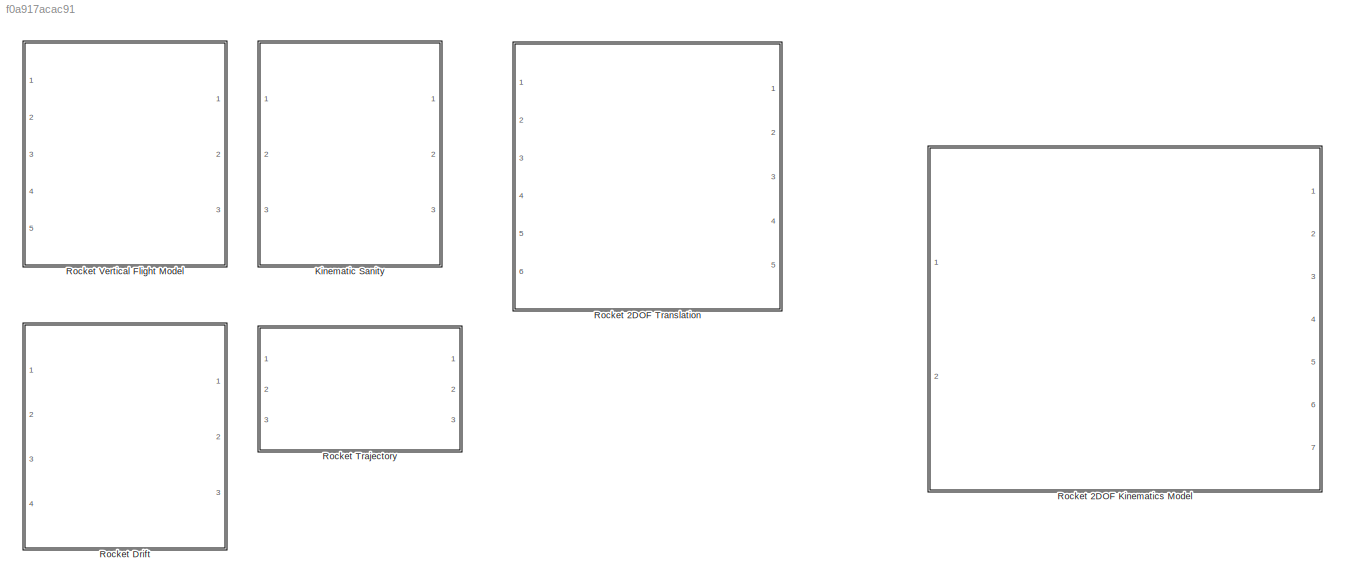
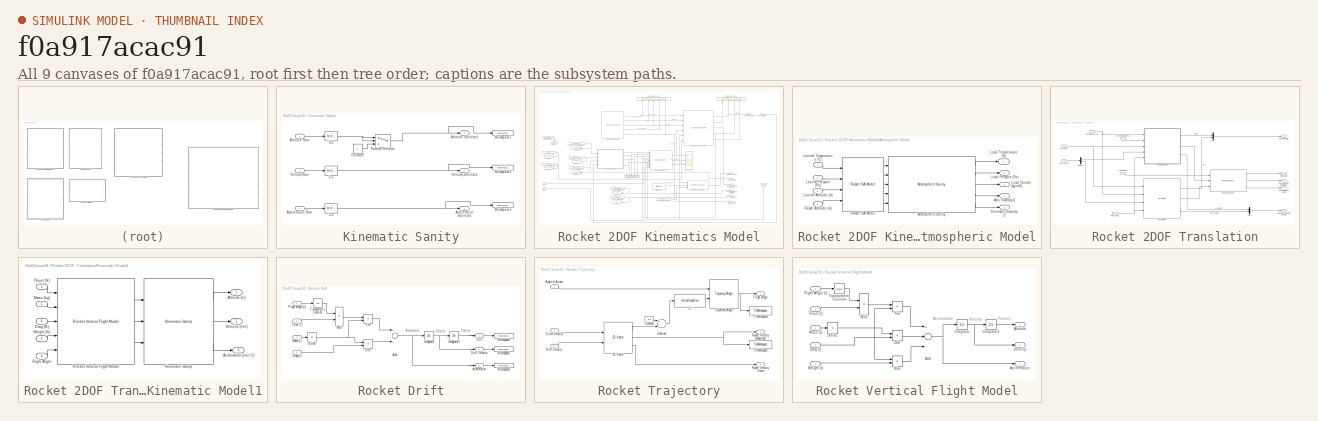
[diagram: thumbnail index - all 9 canvases of the model, root first then tree order]
MODEL slx_f0a917acac91
KIND library
BLOCK [SubSystem] Kinematic Sanity
  Ports = [3, 3]
  RequestExecContextInheritance = off
BLOCK [Inport] Kinematic Sanity/Acceleration Raw
  IconDisplay = Port number
  Port = 3
BLOCK [Outport] Kinematic Sanity/Acceleration Sanitized
  IconDisplay = Port number
  Port = 3
BLOCK [Inport] Kinematic Sanity/Altitude Raw
  IconDisplay = Port number
BLOCK [Outport] Kinematic Sanity/Altitude Sanitized
  IconDisplay = Port number
BLOCK [Constant] Kinematic Sanity/Constant
  Value = 0
BLOCK [InitialCondition] Kinematic Sanity/IC1
  Value = 0
BLOCK [InitialCondition] Kinematic Sanity/IC2
  Value = 0
BLOCK [InitialCondition] Kinematic Sanity/IC3
  Value = 0
BLOCK [Switch] Kinematic Sanity/Positive altitude
  Criteria = u2 > Threshold
  InputSameDT = off
  SaturateOnIntegerOverflow = off
BLOCK [Inport] Kinematic Sanity/Velocity Raw
  IconDisplay = Port number
  Port = 2
BLOCK [Outport] Kinematic Sanity/Velocity Sanitized
  IconDisplay = Port number
  Port = 2
BLOCK [ToWorkspace] Kinematic Sanity/Workspace1
  FixptAsFi = on
  MaxDataPoints = inf
  Ports = [1]
  SampleTime = -1
  Save2DSignal = 3-D array (concatenate along third dimension)
  VariableName = altitude
BLOCK [ToWorkspace] Kinematic Sanity/Workspace2
  FixptAsFi = on
  MaxDataPoints = inf
  Ports = [1]
  SampleTime = -1
  Save2DSignal = 3-D array (concatenate along third dimension)
  VariableName = velocity
BLOCK [ToWorkspace] Kinematic Sanity/Workspace3
  FixptAsFi = on
  MaxDataPoints = inf
  Ports = [1]
  SampleTime = -1
  Save2DSignal = 3-D array (concatenate along third dimension)
  VariableName = acceleration
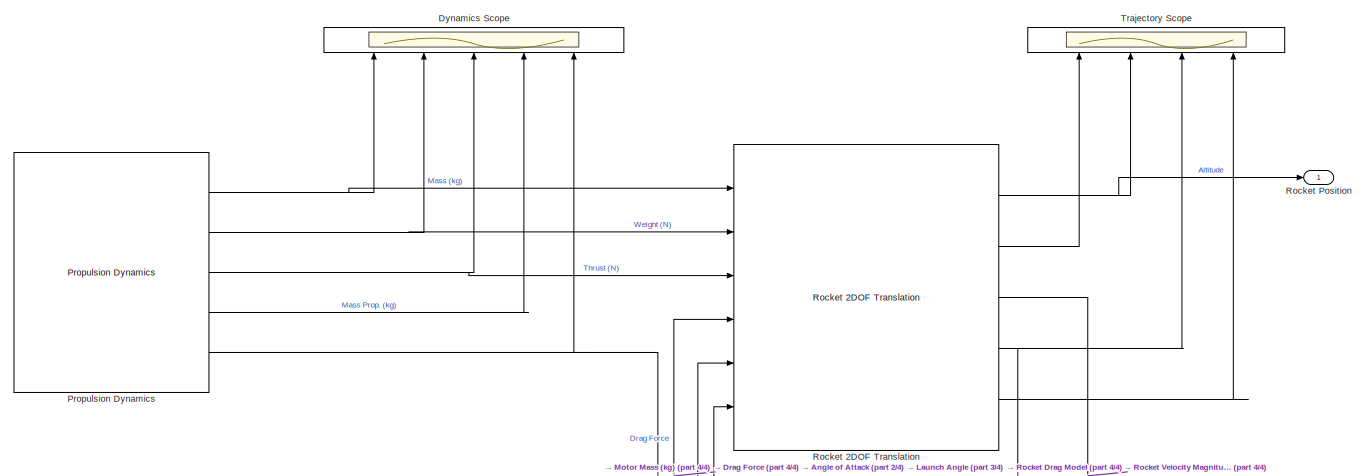
[diagram: Rocket 2DOF Kinematics Model - part 1/4, top center region]
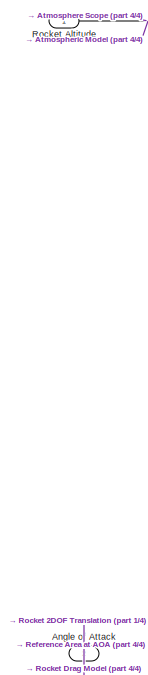
[diagram: Rocket 2DOF Kinematics Model - part 2/4, middle right region]
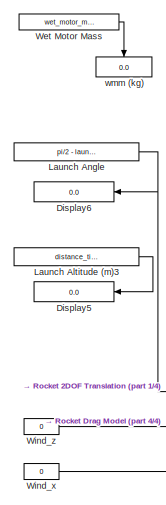
[diagram: Rocket 2DOF Kinematics Model - part 3/4, middle left region]
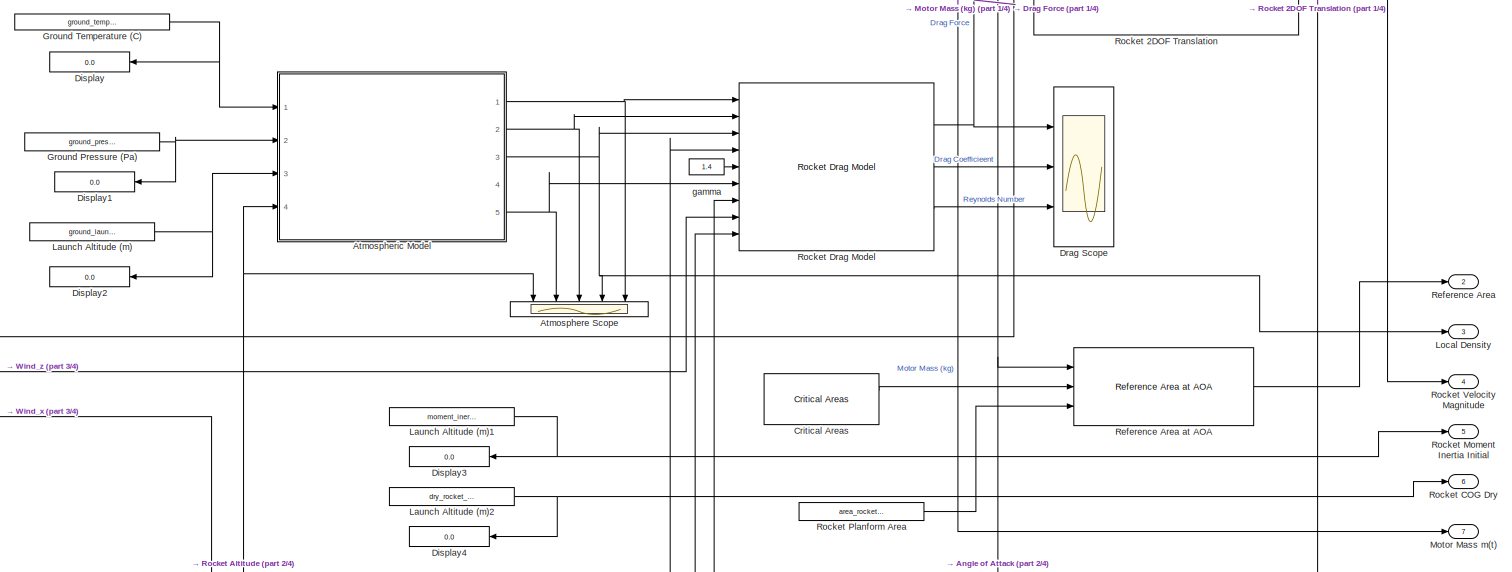
[diagram: Rocket 2DOF Kinematics Model - part 4/4, central region]
BLOCK [SubSystem] Rocket 2DOF Kinematics Model
  Ports = [2, 7]
  RequestExecContextInheritance = off
BLOCK [Constant] Rocket 2DOF Kinematics Model/ Launch Angle
  Value = pi/2 - launch_angle
BLOCK [Inport] Rocket 2DOF Kinematics Model/Angle of Attack
  IconDisplay = Port number
  Port = 2
BLOCK [Scope] Rocket 2DOF Kinematics Model/Atmosphere Scope
  DataFormat = StructureWithTime
  Floating = off
  NumInputPorts = 5
  Ports = [5]
  SampleTime = 0
  SaveName = ScopeData4
  ShowLegends = off
  YMax = 1~31.5~106391~12.355~-1.01773e-07
  YMin = -1~28.5~96258.8~11.1784~-1.12485e-07
BLOCK [SubSystem] Rocket 2DOF Kinematics Model/Atmospheric Model
  Ports = [4, 5]
  RequestExecContextInheritance = off
BLOCK [Outport] Rocket 2DOF Kinematics Model/Atmospheric Model/Abs. Viscosity ()
  IconDisplay = Port number
  Port = 4
BLOCK [Reference] Rocket 2DOF Kinematics Model/Atmospheric Model/Atmospheric Sanity  REF=rocket_isa_model_library/Atmospheric Sanity  (lib defined in slx_4b2a796e4351)
  Ports = [5, 5]
  SourceBlock = rocket_isa_model_library/Atmospheric Sanity
  SourceType = SubSystem
BLOCK [Outport] Rocket 2DOF Kinematics Model/Atmospheric Model/Kinematic Viscosity ()
  IconDisplay = Port number
BLOCK [Inport] Rocket 2DOF Kinematics Model/Atmospheric Model/Launch Altitude (m)
  IconDisplay = Port number
  Port = 3
BLOCK [Inport] Rocket 2DOF Kinematics Model/Atmospheric Model/Launch Pressure (Pa)
  IconDisplay = Port number
  Port = 2
BLOCK [Inport] Rocket 2DOF Kinematics Model/Atmospheric Model/Launch Temperature (C)
  IconDisplay = Port number
BLOCK [Outport] Rocket 2DOF Kinematics Model/Atmospheric Model/Local Density (kg//m^3)
  IconDisplay = Port number
  Port = 3
BLOCK [Outport] Rocket 2DOF Kinematics Model/Atmospheric Model/Local Pressure (Pa)
  IconDisplay = Port number
  Port = 2
BLOCK [Outport] Rocket 2DOF Kinematics Model/Atmospheric Model/Local Temperature (K)
  IconDisplay = Port number
  Port = 5
BLOCK [Inport] Rocket 2DOF Kinematics Model/Atmospheric Model/Rocket Altitude (m)
  IconDisplay = Port number
  Port = 4
BLOCK [Reference] Rocket 2DOF Kinematics Model/Atmospheric Model/Rocket ISA Model  REF=rocket_isa_model_library/Rocket ISA Model  (lib defined in slx_4b2a796e4351)
  Ports = [4, 5]
  SourceBlock = rocket_isa_model_library/Rocket ISA Model
  SourceType = SubSystem
BLOCK [Reference] Rocket 2DOF Kinematics Model/Critical Areas  REF=rocket_drag_library/Critical Areas  (lib defined in slx_51275aa4cfd2)
  Ports = [0, 2]
  SourceBlock = rocket_drag_library/Critical Areas
  SourceType = SubSystem
BLOCK [Display] Rocket 2DOF Kinematics Model/Display
  Decimation = 1
  Ports = [1]
BLOCK [Display] Rocket 2DOF Kinematics Model/Display1
  Decimation = 1
  Ports = [1]
BLOCK [Display] Rocket 2DOF Kinematics Model/Display2
  Decimation = 1
  Ports = [1]
BLOCK [Display] Rocket 2DOF Kinematics Model/Display3
  Decimation = 1
  Ports = [1]
BLOCK [Display] Rocket 2DOF Kinematics Model/Display4
  Decimation = 1
  Ports = [1]
BLOCK [Display] Rocket 2DOF Kinematics Model/Display5
  Decimation = 1
  Ports = [1]
BLOCK [Display] Rocket 2DOF Kinematics Model/Display6
  Decimation = 1
  Ports = [1]
BLOCK [Scope] Rocket 2DOF Kinematics Model/Drag Scope
  DataFormat = StructureWithTime
  Floating = off
  NumInputPorts = 3
  Ports = [3]
  SampleTime = 0
  SaveName = ScopeData3
  ShowLegends = off
  YMax = 240~0.725~5e+07
  YMin = 30~0.45~1.75e+07
BLOCK [Scope] Rocket 2DOF Kinematics Model/Dynamics Scope
  DataFormat = StructureWithTime
  Floating = off
  NumInputPorts = 5
  Ports = [5]
  SampleTime = 0
  SaveName = ScopeData1
  ShowLegends = off
  YMax = 139.531~1368.8~856.01~5~5
  YMin = 126.243~1238.44~774.486~-5~-5
BLOCK [Constant] Rocket 2DOF Kinematics Model/Ground Pressure (Pa)
  Value = ground_pressure_ambient
BLOCK [Constant] Rocket 2DOF Kinematics Model/Ground Temperature (C)
  Value = ground_temperature_ambient
BLOCK [Constant] Rocket 2DOF Kinematics Model/Launch Altitude (m)
  Value = ground_launch_altitude
BLOCK [Constant] Rocket 2DOF Kinematics Model/Launch Altitude (m)1
  Value = moment_inertia_rocket
BLOCK [Constant] Rocket 2DOF Kinematics Model/Launch Altitude (m)2
  Value = dry_rocket_cog
BLOCK [Constant] Rocket 2DOF Kinematics Model/Launch Altitude (m)3
  Value = distance_tip_to_COP
BLOCK [Outport] Rocket 2DOF Kinematics Model/Local Density
  IconDisplay = Port number
  Port = 3
BLOCK [Outport] Rocket 2DOF Kinematics Model/Motor Mass m(t)
  IconDisplay = Port number
  Port = 7
BLOCK [Reference] Rocket 2DOF Kinematics Model/Propulsion Dynamics  REF=rocket_dynamic_data_library/Propulsion Dynamics  (lib defined in slx_58be5b8ac4f4)
  Ports = [0, 5]
  SourceBlock = rocket_dynamic_data_library/Propulsion Dynamics
  SourceType = SubSystem
BLOCK [Outport] Rocket 2DOF Kinematics Model/Reference Area
  IconDisplay = Port number
  Port = 2
BLOCK [Reference] Rocket 2DOF Kinematics Model/Reference Area at AOA  REF=rocket_angular_flight_library/Reference Area at AOA
  Ports = [3, 1]
  SourceBlock = rocket_angular_flight_library/Reference Area at AOA
  SourceType = SubSystem
BLOCK [Reference] Rocket 2DOF Kinematics Model/Rocket 2DOF Translation  REF=rocket_vertical_flight_library/Rocket 2DOF Translation  (lib defined in slx_f0a917acac91)
  Ports = [6, 5]
  SourceBlock = rocket_vertical_flight_library/Rocket 2DOF Translation
  SourceType = SubSystem
BLOCK [Inport] Rocket 2DOF Kinematics Model/Rocket Altitude
  IconDisplay = Port number
BLOCK [Outport] Rocket 2DOF Kinematics Model/Rocket COG Dry
  IconDisplay = Port number
  Port = 6
BLOCK [Reference] Rocket 2DOF Kinematics Model/Rocket Drag Model  REF=rocket_drag_library/Rocket Drag Model  (lib defined in slx_51275aa4cfd2)
  Ports = [9, 3]
  SourceBlock = rocket_drag_library/Rocket Drag Model
  SourceType = SubSystem
BLOCK [Outport] Rocket 2DOF Kinematics Model/Rocket Moment Inertia Initial
  IconDisplay = Port number
  Port = 5
BLOCK [Constant] Rocket 2DOF Kinematics Model/Rocket Planform Area
  Value = area_rocket_planform
BLOCK [Outport] Rocket 2DOF Kinematics Model/Rocket Position
  IconDisplay = Port number
BLOCK [Outport] Rocket 2DOF Kinematics Model/Rocket Velocity Magnitude
  IconDisplay = Port number
  Port = 4
BLOCK [Scope] Rocket 2DOF Kinematics Model/Trajectory Scope
  DataFormat = StructureWithTime
  Floating = off
  NumInputPorts = 4
  Ports = [4]
  SampleTime = 0
  SaveName = ScopeData7
  ShowLegends = off
  YMax = 0.145~525~1~5
  YMin = 0.04~25~-1~-5
BLOCK [Constant] Rocket 2DOF Kinematics Model/Wet Motor Mass
  Value = wet_motor_mass
BLOCK [Constant] Rocket 2DOF Kinematics Model/Wind_x
  Value = 0
BLOCK [Constant] Rocket 2DOF Kinematics Model/Wind_z
  Value = 0
BLOCK [Constant] Rocket 2DOF Kinematics Model/gamma
  Value = 1.4
BLOCK [Display] Rocket 2DOF Kinematics Model/wmm (kg)
  Decimation = 1
  Ports = [1]
BLOCK [SubSystem] Rocket 2DOF Translation
  Ports = [6, 5]
  RequestExecContextInheritance = off
BLOCK [Inport] Rocket 2DOF Translation/Angle of Attack
  IconDisplay = Port number
  Port = 5
BLOCK [Demux] Rocket 2DOF Translation/Demux1
  DisplayOption = bar
  Outputs = 2
  Ports = [1, 2]
BLOCK [Inport] Rocket 2DOF Translation/Drag_zx (N)
  IconDisplay = Port number
  Port = 4
BLOCK [Outport] Rocket 2DOF Translation/Flight Angle
  IconDisplay = Port number
  Port = 2
BLOCK [Inport] Rocket 2DOF Translation/Flight_Angle
  IconDisplay = Port number
  Port = 6
BLOCK [SubSystem] Rocket 2DOF Translation/Kinematic Model1
  Ports = [5, 3]
  RequestExecContextInheritance = off
BLOCK [Outport] Rocket 2DOF Translation/Kinematic Model1/Aceleration (m//s^2)
  IconDisplay = Port number
  Port = 3
BLOCK [Outport] Rocket 2DOF Translation/Kinematic Model1/Altitude (m)
  IconDisplay = Port number
BLOCK [Inport] Rocket 2DOF Translation/Kinematic Model1/Drag (N)
  IconDisplay = Port number
  Port = 4
BLOCK [Inport] Rocket 2DOF Translation/Kinematic Model1/Flight Angle
  IconDisplay = Port number
  Port = 5
BLOCK [Reference] Rocket 2DOF Translation/Kinematic Model1/Kinematic Sanity  REF=rocket_vertical_flight_library/Kinematic Sanity  (lib defined in slx_f0a917acac91)
  Ports = [3, 3]
  SourceBlock = rocket_vertical_flight_library/Kinematic Sanity
  SourceType = SubSystem
BLOCK [Inport] Rocket 2DOF Translation/Kinematic Model1/Mass (kg)
  IconDisplay = Port number
BLOCK [Reference] Rocket 2DOF Translation/Kinematic Model1/Rocket Vertical Flight Model  REF=rocket_vertical_flight_library/Rocket Vertical Flight Model  (lib defined in slx_f0a917acac91)
  Ports = [5, 3]
  SourceBlock = rocket_vertical_flight_library/Rocket Vertical Flight Model
  SourceType = SubSystem
BLOCK [Inport] Rocket 2DOF Translation/Kinematic Model1/Thrust (N)
  IconDisplay = Port number
  Port = 3
BLOCK [Outport] Rocket 2DOF Translation/Kinematic Model1/Velocity (m//s)
  IconDisplay = Port number
  Port = 2
BLOCK [Inport] Rocket 2DOF Translation/Kinematic Model1/Weight (N)
  IconDisplay = Port number
  Port = 2
BLOCK [Mux] Rocket 2DOF Translation/Mux
  DisplayOption = bar
  Inputs = 2
  Ports = [2, 1]
BLOCK [Mux] Rocket 2DOF Translation/Mux1
  DisplayOption = bar
  Inputs = 2
  Ports = [2, 1]
BLOCK [Outport] Rocket 2DOF Translation/Rocket Acceleration Vector
  IconDisplay = Port number
  Port = 5
BLOCK [Reference] Rocket 2DOF Translation/Rocket Drift  REF=rocket_vertical_flight_library/Rocket Drift  (lib defined in slx_f0a917acac91)
  Ports = [4, 3]
  SourceBlock = rocket_vertical_flight_library/Rocket Drift
  SourceType = SubSystem
BLOCK [Inport] Rocket 2DOF Translation/Rocket Mass (kg)
  IconDisplay = Port number
BLOCK [Outport] Rocket 2DOF Translation/Rocket Position
  IconDisplay = Port number
BLOCK [Reference] Rocket 2DOF Translation/Rocket Trajectory  REF=rocket_vertical_flight_library/Rocket Trajectory  (lib defined in slx_f0a917acac91)
  Ports = [3, 3]
  SourceBlock = rocket_vertical_flight_library/Rocket Trajectory
  SourceType = SubSystem
BLOCK [Outport] Rocket 2DOF Translation/Rocket Velocity Magnitude
  IconDisplay = Port number
  Port = 3
BLOCK [Outport] Rocket 2DOF Translation/Rocket Velocity Vector
  IconDisplay = Port number
  Port = 4
BLOCK [Inport] Rocket 2DOF Translation/Rocket Weight (N)
  IconDisplay = Port number
  Port = 2
BLOCK [Inport] Rocket 2DOF Translation/Thrust (N)
  IconDisplay = Port number
  Port = 3
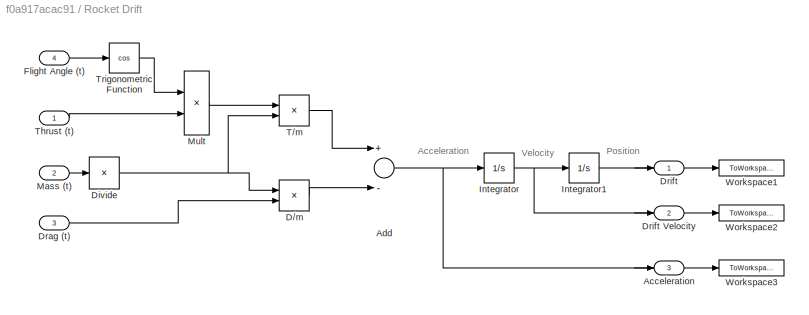
BLOCK [SubSystem] Rocket Drift
  AncestorBlock = rocket_vertical_flight_library/Rocket Vertical Flight Model
  Ports = [4, 3]
  RequestExecContextInheritance = off
BLOCK [Outport] Rocket Drift/Acceleration
  IconDisplay = Port number
  Port = 3
BLOCK [Sum] Rocket Drift/Add
  InputSameDT = off
  Inputs = +-
  OutDataTypeStr = Inherit: Inherit via internal rule
  Ports = [2, 1]
  SaturateOnIntegerOverflow = off
BLOCK [Product] Rocket Drift/D//m
  InputSameDT = off
  OutDataTypeStr = Inherit: Inherit via internal rule
  Ports = [2, 1]
  RndMeth = Floor
  SaturateOnIntegerOverflow = off
BLOCK [Product] Rocket Drift/Divide
  InputSameDT = off
  Inputs = /
  OutDataTypeStr = Inherit: Inherit via internal rule
  Ports = [1, 1]
  RndMeth = Floor
  SaturateOnIntegerOverflow = off
BLOCK [Inport] Rocket Drift/Drag (t)
  IconDisplay = Port number
  Port = 3
BLOCK [Outport] Rocket Drift/Drift
  IconDisplay = Port number
BLOCK [Outport] Rocket Drift/Drift Velocity
  IconDisplay = Port number
  Port = 2
BLOCK [Inport] Rocket Drift/Flight Angle (t)
  IconDisplay = Port number
  Port = 4
BLOCK [Integrator] Rocket Drift/Integrator
  Ports = [1, 1]
BLOCK [Integrator] Rocket Drift/Integrator1
  Ports = [1, 1]
BLOCK [Inport] Rocket Drift/Mass (t)
  IconDisplay = Port number
  Port = 2
BLOCK [Product] Rocket Drift/Mult
  InputSameDT = off
  Inputs = **
  OutDataTypeStr = Inherit: Inherit via internal rule
  Ports = [2, 1]
  RndMeth = Floor
  SaturateOnIntegerOverflow = off
BLOCK [Product] Rocket Drift/T//m
  InputSameDT = off
  OutDataTypeStr = Inherit: Inherit via internal rule
  Ports = [2, 1]
  RndMeth = Floor
  SaturateOnIntegerOverflow = off
BLOCK [Inport] Rocket Drift/Thrust (t)
  IconDisplay = Port number
BLOCK [Trigonometry] Rocket Drift/Trigonometric Function
  Operator = cos
  Ports = [1, 1]
BLOCK [ToWorkspace] Rocket Drift/Workspace1
  FixptAsFi = on
  MaxDataPoints = inf
  Ports = [1]
  SampleTime = -1
  Save2DSignal = 3-D array (concatenate along third dimension)
  VariableName = drift
BLOCK [ToWorkspace] Rocket Drift/Workspace2
  FixptAsFi = on
  MaxDataPoints = inf
  Ports = [1]
  SampleTime = -1
  Save2DSignal = 3-D array (concatenate along third dimension)
  VariableName = velocity_drift
BLOCK [ToWorkspace] Rocket Drift/Workspace3
  FixptAsFi = on
  MaxDataPoints = inf
  Ports = [1]
  SampleTime = -1
  Save2DSignal = 3-D array (concatenate along third dimension)
  VariableName = acceleration_drift
BLOCK [SubSystem] Rocket Trajectory
  Ports = [3, 3]
  RequestExecContextInheritance = off
BLOCK [Reference] Rocket Trajectory/2D Vector  REF=rocket_data_library/Parametric Input Data/2D Vector  (lib defined in slx_8538da7d43bf)
  Ports = [2, 3]
  SourceBlock = rocket_data_library/Parametric Input Data/2D Vector
  SourceType = SubSystem
BLOCK [Inport] Rocket Trajectory/Angle of Attack
  IconDisplay = Port number
BLOCK [Inport] Rocket Trajectory/Climb Velocity
  IconDisplay = Port number
  Port = 2
BLOCK [Constant] Rocket Trajectory/Constant
  Value = pi/2
BLOCK [Inport] Rocket Trajectory/Drift Velocity
  IconDisplay = Port number
  Port = 3
BLOCK [Outport] Rocket Trajectory/Flight Angle
  IconDisplay = Port number
BLOCK [InitialCondition] Rocket Trajectory/IC
  Value = pi/2-launch_angle
BLOCK [Outport] Rocket Trajectory/Rocket Velocity Magnitude
  IconDisplay = Port number
  Port = 2
BLOCK [Outport] Rocket Trajectory/Rocket Velocity Vector
  IconDisplay = Port number
  Port = 3
BLOCK [Sum] Rocket Trajectory/Subtract
  InputSameDT = off
  Inputs = +-
  OutDataTypeStr = Inherit: Inherit via internal rule
  Ports = [2, 1]
  SaturateOnIntegerOverflow = off
BLOCK [ToWorkspace] Rocket Trajectory/To Workspace
  FixptAsFi = on
  MaxDataPoints = inf
  Ports = [1]
  SampleTime = -1
  Save2DSignal = 3-D array (concatenate along third dimension)
  VariableName = velocity_rocket
BLOCK [ToWorkspace] Rocket Trajectory/To Workspace1
  FixptAsFi = on
  MaxDataPoints = inf
  Ports = [1]
  SampleTime = -1
  Save2DSignal = 3-D array (concatenate along third dimension)
  VariableName = flight_angle
BLOCK [Reference] Rocket Trajectory/Trajectory Angle  REF=rocket_angular_flight_library/Trajectory Angle
  Ports = [2, 1]
  SourceBlock = rocket_angular_flight_library/Trajectory Angle
  SourceType = SubSystem
BLOCK [SubSystem] Rocket Vertical Flight Model
  Ports = [5, 3]
  RequestExecContextInheritance = off
BLOCK [Outport] Rocket Vertical Flight Model/Acceleration
  IconDisplay = Port number
  Port = 3
BLOCK [Sum] Rocket Vertical Flight Model/Add
  InputSameDT = off
  Inputs = +--
  OutDataTypeStr = Inherit: Inherit via internal rule
  Ports = [3, 1]
  SaturateOnIntegerOverflow = off
BLOCK [Outport] Rocket Vertical Flight Model/Altitude
  IconDisplay = Port number
BLOCK [Product] Rocket Vertical Flight Model/D//m
  InputSameDT = off
  OutDataTypeStr = Inherit: Inherit via internal rule
  Ports = [2, 1]
  RndMeth = Floor
  SaturateOnIntegerOverflow = off
BLOCK [Product] Rocket Vertical Flight Model/Divide
  InputSameDT = off
  Inputs = /
  OutDataTypeStr = Inherit: Inherit via internal rule
  Ports = [1, 1]
  RndMeth = Floor
  SaturateOnIntegerOverflow = off
BLOCK [Inport] Rocket Vertical Flight Model/Drag (t)
  IconDisplay = Port number
  Port = 3
BLOCK [Inport] Rocket Vertical Flight Model/Flight Angle (t)
  IconDisplay = Port number
  Port = 5
BLOCK [Integrator] Rocket Vertical Flight Model/Integrator
  Ports = [1, 1]
BLOCK [Integrator] Rocket Vertical Flight Model/Integrator1
  Ports = [1, 1]
BLOCK [Inport] Rocket Vertical Flight Model/Mass (t)
  IconDisplay = Port number
  Port = 2
BLOCK [Product] Rocket Vertical Flight Model/Mult
  InputSameDT = off
  Inputs = **
  OutDataTypeStr = Inherit: Inherit via internal rule
  Ports = [2, 1]
  RndMeth = Floor
  SaturateOnIntegerOverflow = off
BLOCK [Product] Rocket Vertical Flight Model/T//m
  InputSameDT = off
  OutDataTypeStr = Inherit: Inherit via internal rule
  Ports = [2, 1]
  RndMeth = Floor
  SaturateOnIntegerOverflow = off
BLOCK [Inport] Rocket Vertical Flight Model/Thrust (t)
  IconDisplay = Port number
BLOCK [Trigonometry] Rocket Vertical Flight Model/Trigonometric Function
  Ports = [1, 1]
BLOCK [Outport] Rocket Vertical Flight Model/Velocity
  IconDisplay = Port number
  Port = 2
BLOCK [Product] Rocket Vertical Flight Model/W//m
  InputSameDT = off
  OutDataTypeStr = Inherit: Inherit via internal rule
  Ports = [2, 1]
  RndMeth = Floor
  SaturateOnIntegerOverflow = off
BLOCK [Inport] Rocket Vertical Flight Model/Weight (t)
  IconDisplay = Port number
  Port = 4
ANNOTATION Rocket Drift: Acceleration
ANNOTATION Rocket Drift: Position
ANNOTATION Rocket Drift: Velocity
ANNOTATION Rocket Vertical Flight Model: Acceleration
ANNOTATION Rocket Vertical Flight Model: Position
ANNOTATION Rocket Vertical Flight Model: Velocity
LINE Kinematic Sanity/Acceleration Raw:1 -> Kinematic Sanity/IC3:1
LINE Kinematic Sanity/Altitude Raw:1 -> Kinematic Sanity/IC1:1
LINE Kinematic Sanity/Constant:1 -> Kinematic Sanity/Positive altitude:3
NET Kinematic Sanity/IC1:1 -> Kinematic Sanity/Positive altitude:1, Kinematic Sanity/Positive altitude:2
NET Kinematic Sanity/IC2:1 -> Kinematic Sanity/Velocity Sanitized:1, Kinematic Sanity/Workspace2:1
NET Kinematic Sanity/IC3:1 -> Kinematic Sanity/Acceleration Sanitized:1, Kinematic Sanity/Workspace3:1
NET Kinematic Sanity/Positive altitude:1 -> Kinematic Sanity/Altitude Sanitized:1, Kinematic Sanity/Workspace1:1
LINE Kinematic Sanity/Velocity Raw:1 -> Kinematic Sanity/IC2:1
NET Rocket 2DOF Kinematics Model/ Launch Angle:1 -> Rocket 2DOF Kinematics Model/Display6:1, Rocket 2DOF Kinematics Model/Rocket 2DOF Translation:6
NET Rocket 2DOF Kinematics Model/Angle of Attack:1 -> Rocket 2DOF Kinematics Model/Reference Area at AOA:1, Rocket 2DOF Kinematics Model/Rocket 2DOF Translation:5, Rocket 2DOF Kinematics Model/Rocket Drag Model:7
LINE Rocket 2DOF Kinematics Model/Atmospheric Model/Atmospheric Sanity:1 -> Rocket 2DOF Kinematics Model/Atmospheric Model/Local Temperature (K):1
LINE Rocket 2DOF Kinematics Model/Atmospheric Model/Atmospheric Sanity:2 -> Rocket 2DOF Kinematics Model/Atmospheric Model/Local Pressure (Pa):1
LINE Rocket 2DOF Kinematics Model/Atmospheric Model/Atmospheric Sanity:3 -> Rocket 2DOF Kinematics Model/Atmospheric Model/Local Density (kg//m^3):1
LINE Rocket 2DOF Kinematics Model/Atmospheric Model/Atmospheric Sanity:4 -> Rocket 2DOF Kinematics Model/Atmospheric Model/Abs. Viscosity ():1
LINE Rocket 2DOF Kinematics Model/Atmospheric Model/Atmospheric Sanity:5 -> Rocket 2DOF Kinematics Model/Atmospheric Model/Kinematic Viscosity ():1
LINE Rocket 2DOF Kinematics Model/Atmospheric Model/Launch Altitude (m):1 -> Rocket 2DOF Kinematics Model/Atmospheric Model/Rocket ISA Model:3
LINE Rocket 2DOF Kinematics Model/Atmospheric Model/Launch Pressure (Pa):1 -> Rocket 2DOF Kinematics Model/Atmospheric Model/Rocket ISA Model:2
LINE Rocket 2DOF Kinematics Model/Atmospheric Model/Launch Temperature (C):1 -> Rocket 2DOF Kinematics Model/Atmospheric Model/Rocket ISA Model:1
LINE Rocket 2DOF Kinematics Model/Atmospheric Model/Rocket Altitude (m):1 -> Rocket 2DOF Kinematics Model/Atmospheric Model/Rocket ISA Model:4
LINE Rocket 2DOF Kinematics Model/Atmospheric Model/Rocket ISA Model:1 -> Rocket 2DOF Kinematics Model/Atmospheric Model/Atmospheric Sanity:1
LINE Rocket 2DOF Kinematics Model/Atmospheric Model/Rocket ISA Model:2 -> Rocket 2DOF Kinematics Model/Atmospheric Model/Atmospheric Sanity:2
LINE Rocket 2DOF Kinematics Model/Atmospheric Model/Rocket ISA Model:3 -> Rocket 2DOF Kinematics Model/Atmospheric Model/Atmospheric Sanity:3
LINE Rocket 2DOF Kinematics Model/Atmospheric Model/Rocket ISA Model:4 -> Rocket 2DOF Kinematics Model/Atmospheric Model/Atmospheric Sanity:4
LINE Rocket 2DOF Kinematics Model/Atmospheric Model/Rocket ISA Model:5 -> Rocket 2DOF Kinematics Model/Atmospheric Model/Atmospheric Sanity:5
NET Rocket 2DOF Kinematics Model/Atmospheric Model:1 -> Rocket 2DOF Kinematics Model/Atmosphere Scope:5, Rocket 2DOF Kinematics Model/Rocket Drag Model:1
NET Rocket 2DOF Kinematics Model/Atmospheric Model:2 -> Rocket 2DOF Kinematics Model/Atmosphere Scope:3, Rocket 2DOF Kinematics Model/Rocket Drag Model:2
NET Rocket 2DOF Kinematics Model/Atmospheric Model:3 -> Rocket 2DOF Kinematics Model/Atmosphere Scope:4, Rocket 2DOF Kinematics Model/Local Density:1, Rocket 2DOF Kinematics Model/Rocket Drag Model:3
NET Rocket 2DOF Kinematics Model/Atmospheric Model:5 -> Rocket 2DOF Kinematics Model/Atmosphere Scope:2, Rocket 2DOF Kinematics Model/Rocket Drag Model:6
LINE Rocket 2DOF Kinematics Model/Critical Areas:1 -> Rocket 2DOF Kinematics Model/Reference Area at AOA:2
NET Rocket 2DOF Kinematics Model/Ground Pressure (Pa):1 -> Rocket 2DOF Kinematics Model/Atmospheric Model:2, Rocket 2DOF Kinematics Model/Display1:1
NET Rocket 2DOF Kinematics Model/Ground Temperature (C):1 -> Rocket 2DOF Kinematics Model/Atmospheric Model:1, Rocket 2DOF Kinematics Model/Display:1
NET Rocket 2DOF Kinematics Model/Launch Altitude (m)1:1 -> Rocket 2DOF Kinematics Model/Display3:1, Rocket 2DOF Kinematics Model/Rocket Moment Inertia Initial:1
NET Rocket 2DOF Kinematics Model/Launch Altitude (m)2:1 -> Rocket 2DOF Kinematics Model/Display4:1, Rocket 2DOF Kinematics Model/Rocket COG Dry:1
LINE Rocket 2DOF Kinematics Model/Launch Altitude (m)3:1 -> Rocket 2DOF Kinematics Model/Display5:1
NET Rocket 2DOF Kinematics Model/Launch Altitude (m):1 -> Rocket 2DOF Kinematics Model/Atmospheric Model:3, Rocket 2DOF Kinematics Model/Display2:1
NET Rocket 2DOF Kinematics Model/Propulsion Dynamics:1 -> Rocket 2DOF Kinematics Model/Dynamics Scope:1, Rocket 2DOF Kinematics Model/Rocket 2DOF Translation:1
NET Rocket 2DOF Kinematics Model/Propulsion Dynamics:2 -> Rocket 2DOF Kinematics Model/Dynamics Scope:2, Rocket 2DOF Kinematics Model/Rocket 2DOF Translation:2
NET Rocket 2DOF Kinematics Model/Propulsion Dynamics:3 -> Rocket 2DOF Kinematics Model/Dynamics Scope:3, Rocket 2DOF Kinematics Model/Rocket 2DOF Translation:3
LINE Rocket 2DOF Kinematics Model/Propulsion Dynamics:4 -> Rocket 2DOF Kinematics Model/Dynamics Scope:4
NET Rocket 2DOF Kinematics Model/Propulsion Dynamics:5 -> Rocket 2DOF Kinematics Model/Dynamics Scope:5, Rocket 2DOF Kinematics Model/Motor Mass m(t):1
LINE Rocket 2DOF Kinematics Model/Reference Area at AOA:1 -> Rocket 2DOF Kinematics Model/Reference Area:1
NET Rocket 2DOF Kinematics Model/Rocket 2DOF Translation:1 -> Rocket 2DOF Kinematics Model/Rocket Position:1, Rocket 2DOF Kinematics Model/Trajectory Scope:2
LINE Rocket 2DOF Kinematics Model/Rocket 2DOF Translation:2 -> Rocket 2DOF Kinematics Model/Trajectory Scope:1
LINE Rocket 2DOF Kinematics Model/Rocket 2DOF Translation:3 -> Rocket 2DOF Kinematics Model/Rocket Velocity Magnitude:1
NET Rocket 2DOF Kinematics Model/Rocket 2DOF Translation:4 -> Rocket 2DOF Kinematics Model/Rocket Drag Model:4, Rocket 2DOF Kinematics Model/Trajectory Scope:3
LINE Rocket 2DOF Kinematics Model/Rocket 2DOF Translation:5 -> Rocket 2DOF Kinematics Model/Trajectory Scope:4
NET Rocket 2DOF Kinematics Model/Rocket Altitude:1 -> Rocket 2DOF Kinematics Model/Atmosphere Scope:1, Rocket 2DOF Kinematics Model/Atmospheric Model:4
NET Rocket 2DOF Kinematics Model/Rocket Drag Model:1 -> Rocket 2DOF Kinematics Model/Drag Scope:1, Rocket 2DOF Kinematics Model/Rocket 2DOF Translation:4
LINE Rocket 2DOF Kinematics Model/Rocket Drag Model:2 -> Rocket 2DOF Kinematics Model/Drag Scope:2
LINE Rocket 2DOF Kinematics Model/Rocket Drag Model:3 -> Rocket 2DOF Kinematics Model/Drag Scope:3
LINE Rocket 2DOF Kinematics Model/Rocket Planform Area:1 -> Rocket 2DOF Kinematics Model/Reference Area at AOA:3
LINE Rocket 2DOF Kinematics Model/Wet Motor Mass:1 -> Rocket 2DOF Kinematics Model/wmm (kg):1
LINE Rocket 2DOF Kinematics Model/Wind_x:1 -> Rocket 2DOF Kinematics Model/Rocket Drag Model:9
LINE Rocket 2DOF Kinematics Model/Wind_z:1 -> Rocket 2DOF Kinematics Model/Rocket Drag Model:8
LINE Rocket 2DOF Kinematics Model/gamma:1 -> Rocket 2DOF Kinematics Model/Rocket Drag Model:5
LINE Rocket 2DOF Translation/Angle of Attack:1 -> Rocket 2DOF Translation/Rocket Trajectory:1
LINE Rocket 2DOF Translation/Demux1:1 -> Rocket 2DOF Translation/Kinematic Model1:4
LINE Rocket 2DOF Translation/Demux1:2 -> Rocket 2DOF Translation/Rocket Drift:3
LINE Rocket 2DOF Translation/Drag_zx (N):1 -> Rocket 2DOF Translation/Demux1:1
NET Rocket 2DOF Translation/Flight_Angle:1 -> Rocket 2DOF Translation/Kinematic Model1:5, Rocket 2DOF Translation/Rocket Drift:4
LINE Rocket 2DOF Translation/Kinematic Model1/Drag (N):1 -> Rocket 2DOF Translation/Kinematic Model1/Rocket Vertical Flight Model:3
LINE Rocket 2DOF Translation/Kinematic Model1/Flight Angle:1 -> Rocket 2DOF Translation/Kinematic Model1/Rocket Vertical Flight Model:5
LINE Rocket 2DOF Translation/Kinematic Model1/Kinematic Sanity:1 -> Rocket 2DOF Translation/Kinematic Model1/Altitude (m):1
LINE Rocket 2DOF Translation/Kinematic Model1/Kinematic Sanity:2 -> Rocket 2DOF Translation/Kinematic Model1/Velocity (m//s):1
LINE Rocket 2DOF Translation/Kinematic Model1/Kinematic Sanity:3 -> Rocket 2DOF Translation/Kinematic Model1/Aceleration (m//s^2):1
LINE Rocket 2DOF Translation/Kinematic Model1/Mass (kg):1 -> Rocket 2DOF Translation/Kinematic Model1/Rocket Vertical Flight Model:2
LINE Rocket 2DOF Translation/Kinematic Model1/Rocket Vertical Flight Model:1 -> Rocket 2DOF Translation/Kinematic Model1/Kinematic Sanity:1
LINE Rocket 2DOF Translation/Kinematic Model1/Rocket Vertical Flight Model:2 -> Rocket 2DOF Translation/Kinematic Model1/Kinematic Sanity:2
LINE Rocket 2DOF Translation/Kinematic Model1/Rocket Vertical Flight Model:3 -> Rocket 2DOF Translation/Kinematic Model1/Kinematic Sanity:3
LINE Rocket 2DOF Translation/Kinematic Model1/Thrust (N):1 -> Rocket 2DOF Translation/Kinematic Model1/Rocket Vertical Flight Model:1
LINE Rocket 2DOF Translation/Kinematic Model1/Weight (N):1 -> Rocket 2DOF Translation/Kinematic Model1/Rocket Vertical Flight Model:4
LINE Rocket 2DOF Translation/Kinematic Model1:1 -> Rocket 2DOF Translation/Mux:1
LINE Rocket 2DOF Translation/Kinematic Model1:2 -> Rocket 2DOF Translation/Rocket Trajectory:2
LINE Rocket 2DOF Translation/Kinematic Model1:3 -> Rocket 2DOF Translation/Mux1:1
LINE Rocket 2DOF Translation/Mux1:1 -> Rocket 2DOF Translation/Rocket Acceleration Vector:1
LINE Rocket 2DOF Translation/Mux:1 -> Rocket 2DOF Translation/Rocket Position:1
LINE Rocket 2DOF Translation/Rocket Drift:1 -> Rocket 2DOF Translation/Mux:2
LINE Rocket 2DOF Translation/Rocket Drift:2 -> Rocket 2DOF Translation/Rocket Trajectory:3
LINE Rocket 2DOF Translation/Rocket Drift:3 -> Rocket 2DOF Translation/Mux1:2
NET Rocket 2DOF Translation/Rocket Mass (kg):1 -> Rocket 2DOF Translation/Kinematic Model1:1, Rocket 2DOF Translation/Rocket Drift:2
LINE Rocket 2DOF Translation/Rocket Trajectory:1 -> Rocket 2DOF Translation/Flight Angle:1
LINE Rocket 2DOF Translation/Rocket Trajectory:2 -> Rocket 2DOF Translation/Rocket Velocity Magnitude:1
LINE Rocket 2DOF Translation/Rocket Trajectory:3 -> Rocket 2DOF Translation/Rocket Velocity Vector:1
LINE Rocket 2DOF Translation/Rocket Weight (N):1 -> Rocket 2DOF Translation/Kinematic Model1:2
NET Rocket 2DOF Translation/Thrust (N):1 -> Rocket 2DOF Translation/Kinematic Model1:3, Rocket 2DOF Translation/Rocket Drift:1
LINE Rocket Trajectory/2D Vector:1 -> Rocket Trajectory/Subtract:2
NET Rocket Trajectory/2D Vector:2 -> Rocket Trajectory/Rocket Velocity Magnitude:1, Rocket Trajectory/To Workspace:1
LINE Rocket Trajectory/2D Vector:3 -> Rocket Trajectory/Rocket Velocity Vector:1
LINE Rocket Trajectory/Angle of Attack:1 -> Rocket Trajectory/Trajectory Angle:1
LINE Rocket Trajectory/Climb Velocity:1 -> Rocket Trajectory/2D Vector:1
LINE Rocket Trajectory/Constant:1 -> Rocket Trajectory/Subtract:1
LINE Rocket Trajectory/Drift Velocity:1 -> Rocket Trajectory/2D Vector:2
LINE Rocket Trajectory/IC:1 -> Rocket Trajectory/Trajectory Angle:2
LINE Rocket Trajectory/Subtract:1 -> Rocket Trajectory/IC:1
NET Rocket Trajectory/Trajectory Angle:1 -> Rocket Trajectory/Flight Angle:1, Rocket Trajectory/To Workspace1:1
NET Rocket Vertical Flight Model/Add:1 -> Rocket Vertical Flight Model/Acceleration:1, Rocket Vertical Flight Model/Integrator:1
LINE Rocket Vertical Flight Model/D//m:1 -> Rocket Vertical Flight Model/Add:2
NET Rocket Vertical Flight Model/Divide:1 -> Rocket Vertical Flight Model/D//m:1, Rocket Vertical Flight Model/T//m:2, Rocket Vertical Flight Model/W//m:1
LINE Rocket Vertical Flight Model/Drag (t):1 -> Rocket Vertical Flight Model/D//m:2
LINE Rocket Vertical Flight Model/Flight Angle (t):1 -> Rocket Vertical Flight Model/Trigonometric Function:1
LINE Rocket Vertical Flight Model/Integrator1:1 -> Rocket Vertical Flight Model/Altitude:1
NET Rocket Vertical Flight Model/Integrator:1 -> Rocket Vertical Flight Model/Integrator1:1, Rocket Vertical Flight Model/Velocity:1
LINE Rocket Vertical Flight Model/Mass (t):1 -> Rocket Vertical Flight Model/Divide:1
LINE Rocket Vertical Flight Model/Mult:1 -> Rocket Vertical Flight Model/T//m:1
LINE Rocket Vertical Flight Model/T//m:1 -> Rocket Vertical Flight Model/Add:1
LINE Rocket Vertical Flight Model/Thrust (t):1 -> Rocket Vertical Flight Model/Mult:2
LINE Rocket Vertical Flight Model/Trigonometric Function:1 -> Rocket Vertical Flight Model/Mult:1
LINE Rocket Vertical Flight Model/W//m:1 -> Rocket Vertical Flight Model/Add:3
LINE Rocket Vertical Flight Model/Weight (t):1 -> Rocket Vertical Flight Model/W//m:2
note: NET lines group one-source signal fan-out (src -> all destinations, sorted); 1:1 wires keep LINE
